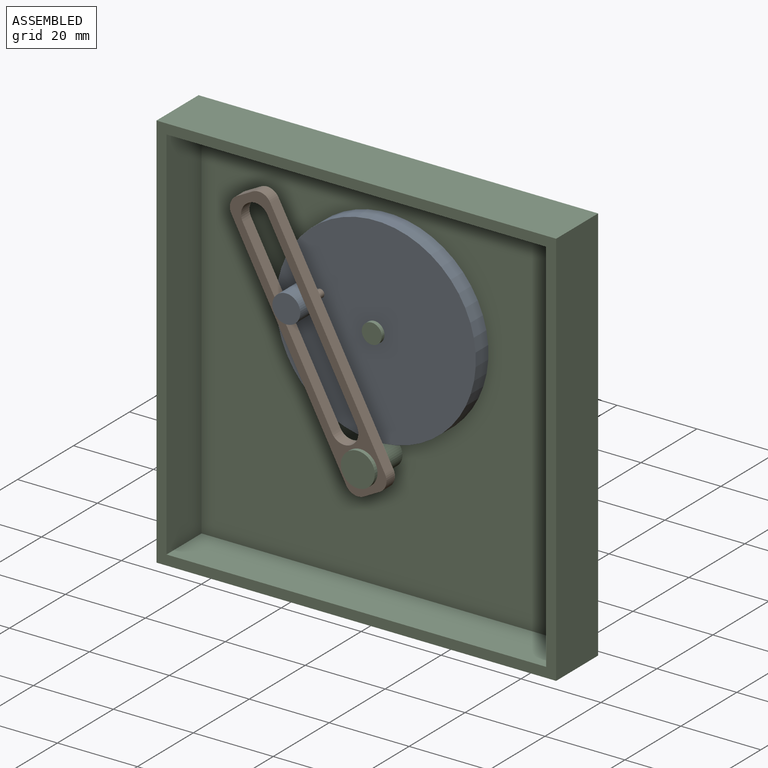
[diagram: assembled view]
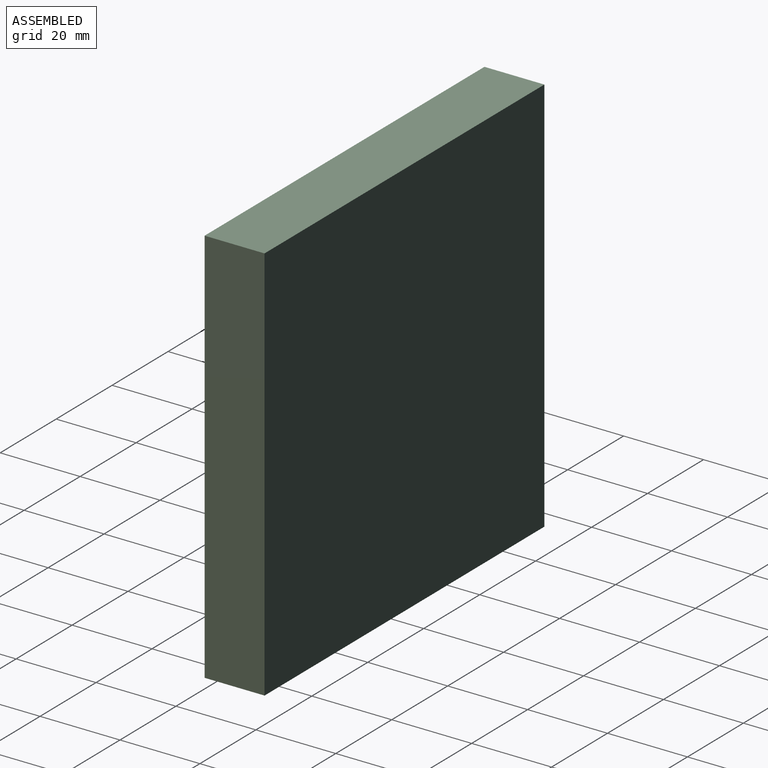
[diagram: assembled view, second angle]
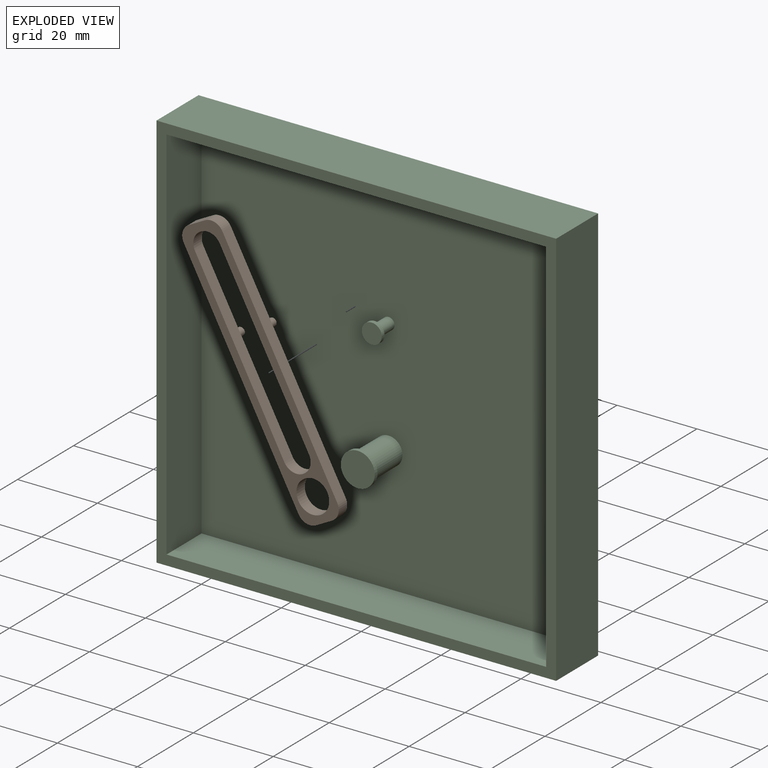
[diagram: exploded view]
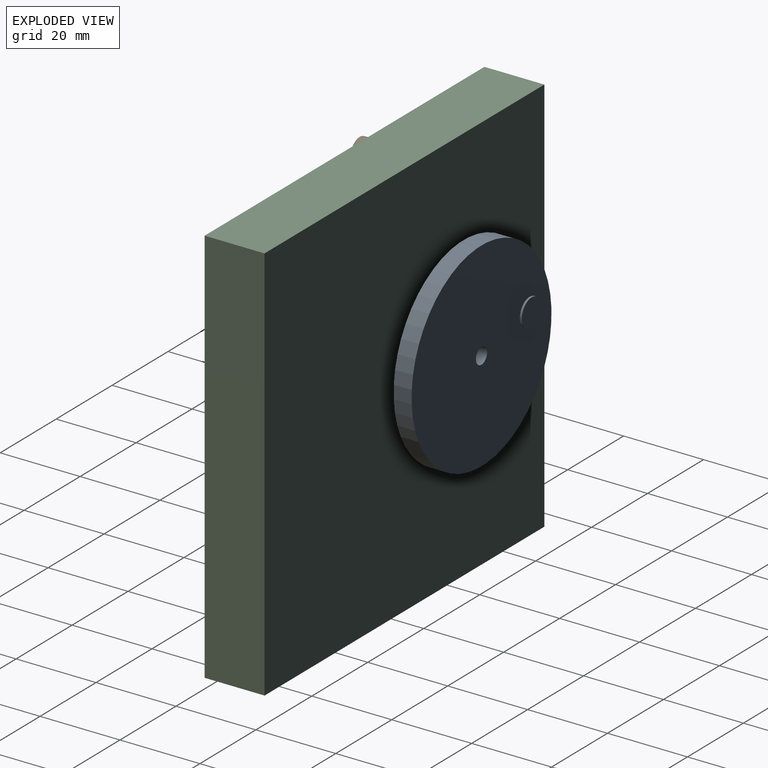
[diagram: exploded view, second angle]
ASSEMBLY  parts=3 mates=4
PART A: 8 faces, bbox 50x12.5x50 mm
  f0: cylinder r=25mm len=50mm, axis (0,1,0), area 706.9mm2, adj f1,f2
  f1: plane 50x50mm, normal (0,-1,0), area 1912.4mm2, adj f0,f6,f7
  f2: plane 50x50mm, normal (0,1,0), area 1912.4mm2, adj f0,f4,f7
  f3: plane 7x7mm, normal (0,1,0), area 38.5mm2, adj f4
  f4: cylinder r=3.5mm len=7mm, axis (0,1,0), area 11mm2, adj f2,f3
  f5: plane 7x7mm, normal (0,-1,0), area 38.5mm2, adj f6
  f6: cylinder r=3.5mm len=7.5mm, axis (0,1,0), area 164.9mm2, adj f1,f5
  f7: cylinder r=2mm len=4.5mm, axis (0,-1,0), area 56.5mm2, adj f1,f2
PART B: 20 faces, bbox 11x4.5x67.4 mm
  f0: plane 42.36x11mm, normal (0,1,0), area 191.4mm2, adj f1,f2,f4,f5,f6,f7,f8,f11
  f1: cylinder r=3.5mm len=7mm, axis (0,1,0), area 33mm2, adj f0,f2,f11,f13
  f2: plane 47.4x3mm, normal (1,0,0), area 142.2mm2, adj f0,f1,f3,f13,f14
  f3: cylinder r=3.5mm len=7mm, axis (0,1,0), area 33mm2, adj f2,f11,f13,f14
  f4: plane 60.93x3mm, normal (-1,0,0), area 182.8mm2, adj f0,f5,f12,f13,f14
  f5: cylinder r=3.25mm len=3.25mm, axis (0,1,0), area 15.3mm2, adj f0,f4,f6,f13
  f6: plane 4.49x3mm, normal (0,0,-1), area 13.5mm2, adj f0,f5,f7,f13
  f7: cylinder r=3.25mm len=3.25mm, axis (0,1,0), area 15.3mm2, adj f0,f6,f8,f13
  f8: plane 60.93x3mm, normal (1,0,0), area 182.8mm2, adj f0,f7,f9,f13,f14
  f9: cylinder r=3.25mm len=3.25mm, axis (0,1,0), area 15.3mm2, adj f8,f10,f13,f14
  f10: plane 4.49x3mm, normal (0,0,1), area 13.5mm2, adj f9,f12,f13,f14
  f11: plane 47.4x3mm, normal (-1,0,0), area 142.2mm2, adj f0,f1,f3,f13,f14
  f12: cylinder r=3.25mm len=3.25mm, axis (0,1,0), area 15.3mm2, adj f4,f10,f13,f14
  f13: plane 67.43x11mm, normal (0,-1,0), area 309.5mm2, adj f1,f2,f3,f4,f5,f6,f7,f8
  f14: plane 25.07x11mm, normal (0,1,0), area 111.8mm2, adj f2,f3,f4,f8,f9,f10,f11,f12
  f15: cylinder r=4.1mm len=8.2mm, axis (0,-1,0), area 77.3mm2, adj f0,f13
  f16: cylinder r=1mm len=2mm, axis (0,-1,0), area 9.4mm2, adj f0,f14,f17
  f17: plane 2x2mm, normal (0,1,0), area 3.1mm2, adj f16
  f18: cylinder r=1mm len=2mm, axis (0,-1,0), area 9.4mm2, adj f0,f14,f19
  f19: plane 2x2mm, normal (0,1,0), area 3.1mm2, adj f18
PART C: 19 faces, bbox 100x15x100 mm
  f0: plane 100x100mm, normal (0,-1,0), area 975mm2, adj f1,f2,f3,f4,f6,f7,f8,f9
  f1: plane 100x15mm, normal (0,0,1), area 1500mm2, adj f0,f2,f4,f5
  f2: plane 100x15mm, normal (-1,0,0), area 1500mm2, adj f0,f1,f3,f5
  f3: plane 100x15mm, normal (0,0,-1), area 1500mm2, adj f0,f2,f4,f5
  f4: plane 100x15mm, normal (1,0,0), area 1500mm2, adj f0,f1,f3,f5
  f5: plane 100x100mm, normal (0,1,0), area 10000mm2, adj f1,f2,f3,f4
  f6: plane 95x12.5mm, normal (0,0,-1), area 1187.5mm2, adj f0,f7,f9,f10
  f7: plane 95x12.5mm, normal (1,0,0), area 1187.5mm2, adj f0,f6,f8,f10
  f8: plane 95x12.5mm, normal (0,0,1), area 1187.5mm2, adj f0,f7,f9,f10
  f9: plane 95x12.5mm, normal (-1,0,0), area 1187.5mm2, adj f0,f6,f8,f10
  f10: plane 95x95mm, normal (0,-1,0), area 8979.4mm2, adj f6,f7,f8,f9,f11,f12
  f11: cylinder r=1.5mm len=5mm, axis (0,1,0), area 47.1mm2, adj f10,f15
  f12: cylinder r=3.5mm len=10mm, axis (0,1,0), area 219.9mm2, adj f10,f18
  f13: cylinder r=2.5mm len=5mm, axis (0,1,0), area 15.7mm2, adj f14,f15
  f14: plane 5x5mm, normal (0,-1,0), area 19.6mm2, adj f13
  f15: plane 5x5mm, normal (0,1,0), area 12.6mm2, adj f11,f13
  f16: cylinder r=4.25mm len=8.5mm, axis (0,1,0), area 26.7mm2, adj f17,f18
  f17: plane 8.5x8.5mm, normal (0,-1,0), area 56.7mm2, adj f16
  f18: plane 8.5x8.5mm, normal (0,1,0), area 18.3mm2, adj f12,f16
PLACE A rot(axis=(0,1,0),100.9deg) t=(-14.2,15.06,26.28)mm
PLACE B rot(axis=(0,-1,0),28.1deg) t=(-9.13,14.56,9.12)mm
PLACE C t=(-1.59,14.56,11.01)mm fixed
MATE planar B.f1 <-> C.f12  axis (0,-1,0) through (-5.64,2.06,2.61)mm
MATE planar A.f4 <-> C.f12  axis (0,1,0) through (-18.77,12.06,27.15)mm
MATE cylindrical C.f12 <-> B.f15  axis (0,1,0) through (-1.59,7.06,-4.97)mm
MATE cylindrical A.f0 <-> C.f11  axis (0,-1,0) through (-1.59,9.81,23.86)mm
